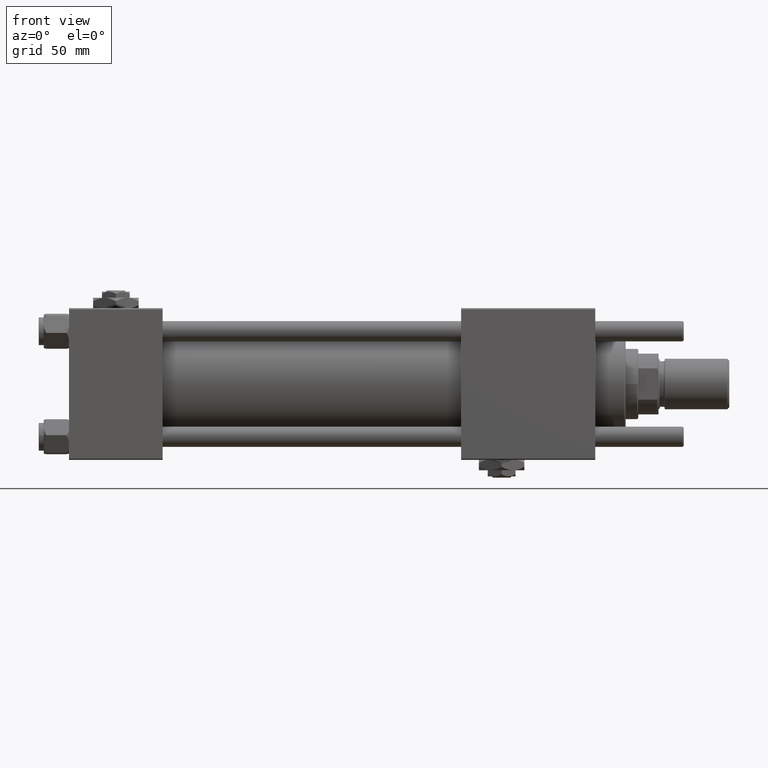
[diagram: clean part render]
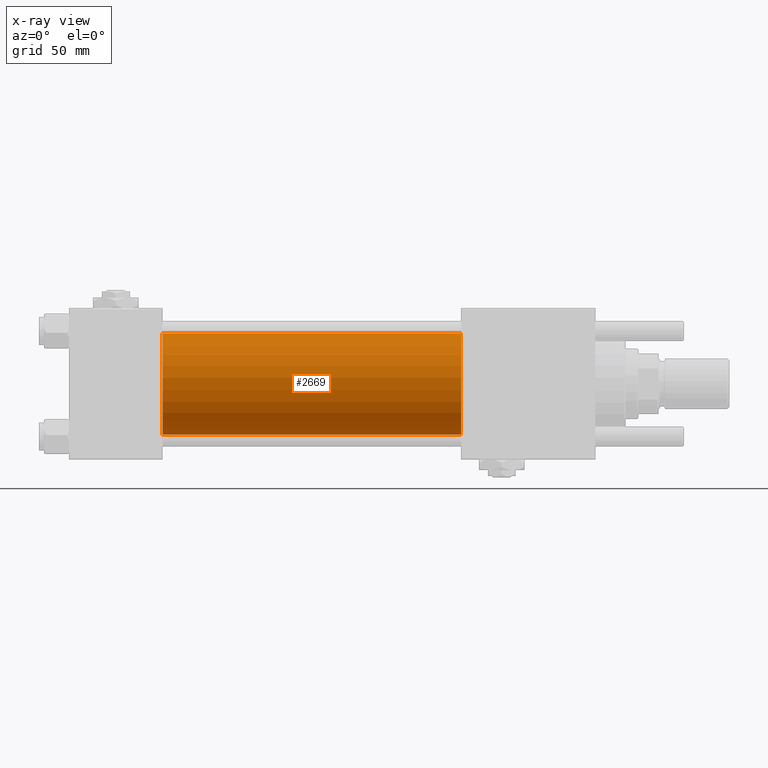
[diagram: x-ray — body ghosted, one internal face saturated and labeled with its STEP entity id]
A machine part, front view, then the same camera in x-ray: the body is ghosted and one INTERNAL B-rep face — a face not visible from any outside direction — is saturated and labeled: STEP entity #2669.
In plain terms, the highlighted cylindrical surface (partial cylindrical patch) has radius 20 mm, axis along (-1, -0, -0).
Its self-contained STEP definition (entity closure, byte-faithful):
#468 = VERTEX_POINT ( 'NONE', #8257 ) ;
#2669 = ADVANCED_FACE ( 'NONE', ( #3687 ), #25613, .F. ) ;
#3687 = FACE_OUTER_BOUND ( 'NONE', #9368, .T. ) ;
#3980 = DIRECTION ( 'NONE',  ( 0.000000000000000000, 0.000000000000000000, 1.000000000000000000 ) ) ;
#5177 = LINE ( 'NONE', #27994, #40861 ) ;
#8257 = CARTESIAN_POINT ( 'NONE',  ( 37.00000000000000000, -1.527916156705042519E-16, -20.00000000000000000 ) ) ;
#9345 = DIRECTION ( 'NONE',  ( 1.000000000000000000, 0.000000000000000000, 0.000000000000000000 ) ) ;
#9368 = EDGE_LOOP ( 'NONE', ( #35399, #48190, #49696, #35585 ) ) ;
#10340 = DIRECTION ( 'NONE',  ( 1.000000000000000000, 0.000000000000000000, 0.000000000000000000 ) ) ;
#12448 = CARTESIAN_POINT ( 'NONE',  ( 155.0000000000000000, -1.527916156705042519E-16, -20.00000000000000000 ) ) ;
#13856 = CARTESIAN_POINT ( 'NONE',  ( 37.00000000000000000, -2.602085213965210642E-15, 0.000000000000000000 ) ) ;
#14694 = CARTESIAN_POINT ( 'NONE',  ( 155.0000000000000000, -1.527916156705042519E-16, -20.00000000000000000 ) ) ;
#14849 = DIRECTION ( 'NONE',  ( 0.000000000000000000, 0.000000000000000000, -1.000000000000000000 ) ) ;
#15962 = EDGE_CURVE ( 'NONE', #40637, #468, #17580, .T. ) ;
#17580 = CIRCLE ( 'NONE', #31923, 20.00000000000000000 ) ;
#18127 = LINE ( 'NONE', #12448, #28441 ) ;
#19248 = VERTEX_POINT ( 'NONE', #51071 ) ;
#25613 = CYLINDRICAL_SURFACE ( 'NONE', #54959, 20.00000000000000000 ) ;
#26641 = AXIS2_PLACEMENT_3D ( 'NONE', #42143, #10340, #14849 ) ;
#27994 = CARTESIAN_POINT ( 'NONE',  ( 155.0000000000000000, -2.602085213965210642E-15, 20.00000000000000000 ) ) ;
#28441 = VECTOR ( 'NONE', #40638, 1000.000000000000000 ) ;
#31923 = AXIS2_PLACEMENT_3D ( 'NONE', #13856, #9345, #54075 ) ;
#35399 = ORIENTED_EDGE ( 'NONE', *, *, #45952, .T. ) ;
#35585 = ORIENTED_EDGE ( 'NONE', *, *, #41938, .F. ) ;
#39348 = VERTEX_POINT ( 'NONE', #14694 ) ;
#40302 = CARTESIAN_POINT ( 'NONE',  ( 155.0000000000000000, -2.602085213965210642E-15, 0.000000000000000000 ) ) ;
#40637 = VERTEX_POINT ( 'NONE', #49016 ) ;
#40638 = DIRECTION ( 'NONE',  ( -1.000000000000000000, -0.000000000000000000, -0.000000000000000000 ) ) ;
#40861 = VECTOR ( 'NONE', #46886, 1000.000000000000000 ) ;
#41938 = EDGE_CURVE ( 'NONE', #19248, #40637, #5177, .T. ) ;
#42143 = CARTESIAN_POINT ( 'NONE',  ( 155.0000000000000000, -2.602085213965210642E-15, 0.000000000000000000 ) ) ;
#42657 = EDGE_CURVE ( 'NONE', #39348, #468, #18127, .T. ) ;
#44516 = DIRECTION ( 'NONE',  ( -1.000000000000000000, -0.000000000000000000, -0.000000000000000000 ) ) ;
#45952 = EDGE_CURVE ( 'NONE', #19248, #39348, #47714, .T. ) ;
#46886 = DIRECTION ( 'NONE',  ( -1.000000000000000000, -0.000000000000000000, -0.000000000000000000 ) ) ;
#47714 = CIRCLE ( 'NONE', #26641, 20.00000000000000000 ) ;
#48190 = ORIENTED_EDGE ( 'NONE', *, *, #42657, .T. ) ;
#49016 = CARTESIAN_POINT ( 'NONE',  ( 37.00000000000000000, -2.602085213965210642E-15, 20.00000000000000000 ) ) ;
#49696 = ORIENTED_EDGE ( 'NONE', *, *, #15962, .F. ) ;
#51071 = CARTESIAN_POINT ( 'NONE',  ( 155.0000000000000000, -2.602085213965210642E-15, 20.00000000000000000 ) ) ;
#54075 = DIRECTION ( 'NONE',  ( 0.000000000000000000, 0.000000000000000000, -1.000000000000000000 ) ) ;
#54959 = AXIS2_PLACEMENT_3D ( 'NONE', #40302, #44516, #3980 ) ;